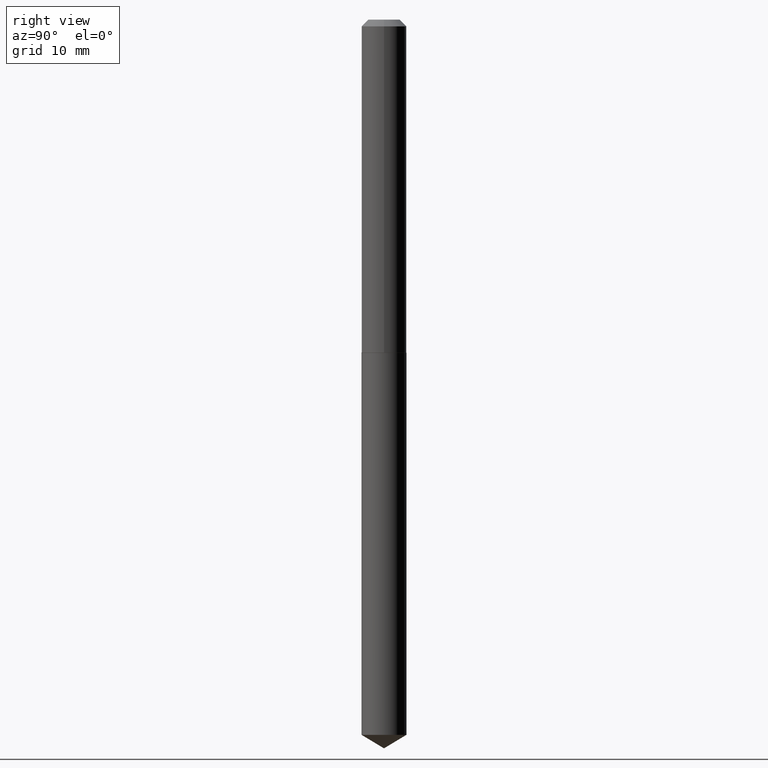
[diagram: clean part render]
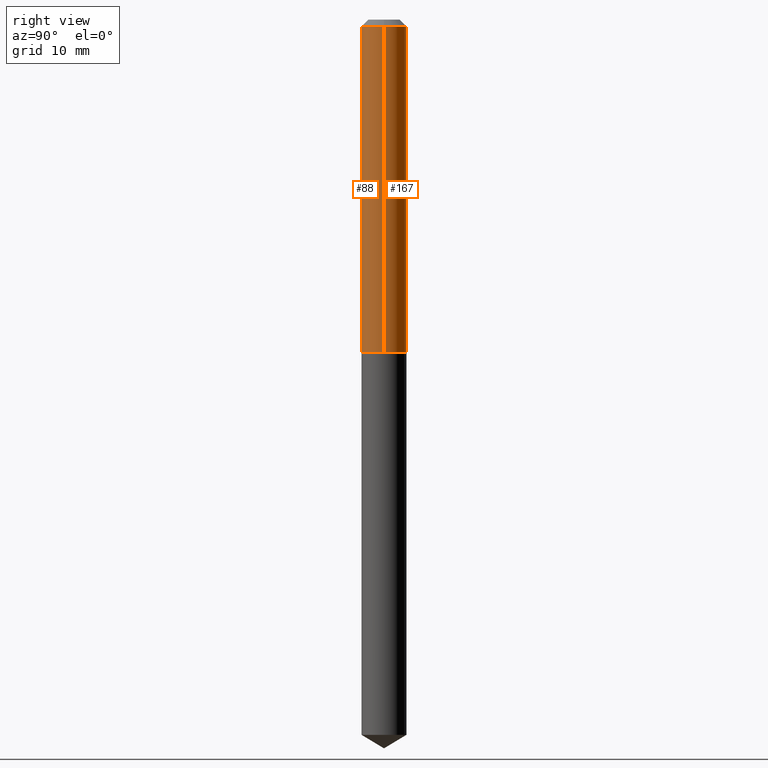
[diagram: same view with one multi-face feature highlighted, each face labeled with its STEP entity id]
A machine part, right view. The highlighted faces form ONE feature: a constant-radius fillet chain: 2 tangent blend faces with common blend radius 2.6505 mm. The faces share edges in the B-rep.
Their STEP definitions:
[1] entity #88 (Cylinder):
#1 = EDGE_CURVE ( 'NONE', #156, #247, #317, .T. ) ;
#11 = ORIENTED_EDGE ( 'NONE', *, *, #1, .T. ) ;
#30 = DIRECTION ( 'NONE',  ( -2.445468806185136597E-29, 3.491481338843145583E-15, 1.000000000000000000 ) ) ;
#31 = EDGE_CURVE ( 'NONE', #287, #104, #282, .T. ) ;
#40 = ORIENTED_EDGE ( 'NONE', *, *, #362, .T. ) ;
#53 = ORIENTED_EDGE ( 'NONE', *, *, #31, .F. ) ;
#56 = AXIS2_PLACEMENT_3D ( 'NONE', #64, #30, #379 ) ;
#64 = CARTESIAN_POINT ( 'NONE',  ( 0.000000000000000000, 0.000000000000000000, 0.000000000000000000 ) ) ;
#65 = CARTESIAN_POINT ( 'NONE',  ( 7.642090019328602662E-31, -1.091087918388490267E-16, -0.03125000000000020817 ) ) ;
#85 = CARTESIAN_POINT ( 'NONE',  ( 3.782651149407169365E-29, -5.400623334922577222E-15, -1.546799999999999953 ) ) ;
#88 = ADVANCED_FACE ( 'NONE', ( #148 ), #212, .T. ) ;
#94 = DIRECTION ( 'NONE',  ( -2.445468806185136597E-29, 3.491481338843145583E-15, 1.000000000000000000 ) ) ;
#104 = VERTEX_POINT ( 'NONE', #269 ) ;
#110 = LINE ( 'NONE', #373, #270 ) ;
#134 = ORIENTED_EDGE ( 'NONE', *, *, #306, .F. ) ;
#135 = CARTESIAN_POINT ( 'NONE',  ( 0.1043500000000001787, -6.129295490339141210E-15, -1.546799999999999953 ) ) ;
#148 = FACE_OUTER_BOUND ( 'NONE', #227, .T. ) ;
#156 = VERTEX_POINT ( 'NONE', #281 ) ;
#168 = VECTOR ( 'NONE', #322, 39.37007874015748143 ) ;
#206 = DIRECTION ( 'NONE',  ( 1.000000000000000000, -6.982962677686266711E-15, 0.000000000000000000 ) ) ;
#209 = DIRECTION ( 'NONE',  ( -2.445468806185136597E-29, 3.491481338843145583E-15, 1.000000000000000000 ) ) ;
#212 = CYLINDRICAL_SURFACE ( 'NONE', #56, 0.1043500000000000816 ) ;
#227 = EDGE_LOOP ( 'NONE', ( #134, #11, #40, #53 ) ) ;
#237 = LINE ( 'NONE', #291, #168 ) ;
#247 = VERTEX_POINT ( 'NONE', #135 ) ;
#249 = AXIS2_PLACEMENT_3D ( 'NONE', #65, #209, #206 ) ;
#267 = CARTESIAN_POINT ( 'NONE',  ( -0.1043499999999999844, -2.013414718615047446E-15, -0.03125000000000020817 ) ) ;
#269 = CARTESIAN_POINT ( 'NONE',  ( 0.1043499999999999844, -8.377809472554109199E-16, -0.03125000000000020817 ) ) ;
#270 = VECTOR ( 'NONE', #355, 39.37007874015748143 ) ;
#275 = DIRECTION ( 'NONE',  ( 1.000000000000000000, -6.982962677686269077E-15, 0.000000000000000000 ) ) ;
#281 = CARTESIAN_POINT ( 'NONE',  ( -0.1043500000000001787, -4.659171990156911506E-15, -1.546799999999999953 ) ) ;
#282 = CIRCLE ( 'NONE', #249, 0.1043499999999999844 ) ;
#287 = VERTEX_POINT ( 'NONE', #267 ) ;
#291 = CARTESIAN_POINT ( 'NONE',  ( 0.1043500000000000816, -7.286721554165625095E-16, 5.088290465543062912E-30 ) ) ;
#306 = EDGE_CURVE ( 'NONE', #156, #287, #110, .T. ) ;
#317 = CIRCLE ( 'NONE', #375, 0.1043500000000001787 ) ;
#322 = DIRECTION ( 'NONE',  ( -2.445468806185136877E-29, 3.491481338843145188E-15, 1.000000000000000000 ) ) ;
#355 = DIRECTION ( 'NONE',  ( -2.445468806185136877E-29, 3.491481338843145188E-15, 1.000000000000000000 ) ) ;
#362 = EDGE_CURVE ( 'NONE', #247, #104, #237, .T. ) ;
#373 = CARTESIAN_POINT ( 'NONE',  ( -0.1043500000000000816, 7.414513447656651236E-16, -5.132908766680998310E-30 ) ) ;
#375 = AXIS2_PLACEMENT_3D ( 'NONE', #85, #94, #275 ) ;
#379 = DIRECTION ( 'NONE',  ( 1.000000000000000000, -6.982962677686266711E-15, 4.876176775795935793E-29 ) ) ;
[2] entity #167 (Cylinder):
#3 = FACE_OUTER_BOUND ( 'NONE', #51, .T. ) ;
#5 = DIRECTION ( 'NONE',  ( -2.445468806185136597E-29, 3.491481338843145583E-15, 1.000000000000000000 ) ) ;
#9 = AXIS2_PLACEMENT_3D ( 'NONE', #133, #69, #192 ) ;
#10 = DIRECTION ( 'NONE',  ( 1.000000000000000000, -6.982962677686269077E-15, 0.000000000000000000 ) ) ;
#51 = EDGE_LOOP ( 'NONE', ( #348, #364, #259, #225 ) ) ;
#69 = DIRECTION ( 'NONE',  ( -2.445468806185136597E-29, 3.491481338843145583E-15, 1.000000000000000000 ) ) ;
#97 = CYLINDRICAL_SURFACE ( 'NONE', #157, 0.1043500000000000816 ) ;
#100 = DIRECTION ( 'NONE',  ( -2.445468806185136597E-29, 3.491481338843145583E-15, 1.000000000000000000 ) ) ;
#104 = VERTEX_POINT ( 'NONE', #269 ) ;
#110 = LINE ( 'NONE', #373, #270 ) ;
#130 = CARTESIAN_POINT ( 'NONE',  ( 0.000000000000000000, 0.000000000000000000, 0.000000000000000000 ) ) ;
#133 = CARTESIAN_POINT ( 'NONE',  ( 7.642090019328602662E-31, -1.091087918388490267E-16, -0.03125000000000020817 ) ) ;
#135 = CARTESIAN_POINT ( 'NONE',  ( 0.1043500000000001787, -6.129295490339141210E-15, -1.546799999999999953 ) ) ;
#139 = EDGE_CURVE ( 'NONE', #104, #287, #271, .T. ) ;
#156 = VERTEX_POINT ( 'NONE', #281 ) ;
#157 = AXIS2_PLACEMENT_3D ( 'NONE', #130, #100, #367 ) ;
#164 = CARTESIAN_POINT ( 'NONE',  ( 3.782651149407169365E-29, -5.400623334922577222E-15, -1.546799999999999953 ) ) ;
#167 = ADVANCED_FACE ( 'NONE', ( #3 ), #97, .T. ) ;
#168 = VECTOR ( 'NONE', #322, 39.37007874015748143 ) ;
#186 = EDGE_CURVE ( 'NONE', #247, #156, #365, .T. ) ;
#192 = DIRECTION ( 'NONE',  ( 1.000000000000000000, -6.982962677686266711E-15, 0.000000000000000000 ) ) ;
#207 = AXIS2_PLACEMENT_3D ( 'NONE', #164, #5, #10 ) ;
#225 = ORIENTED_EDGE ( 'NONE', *, *, #362, .F. ) ;
#237 = LINE ( 'NONE', #291, #168 ) ;
#247 = VERTEX_POINT ( 'NONE', #135 ) ;
#259 = ORIENTED_EDGE ( 'NONE', *, *, #139, .F. ) ;
#267 = CARTESIAN_POINT ( 'NONE',  ( -0.1043499999999999844, -2.013414718615047446E-15, -0.03125000000000020817 ) ) ;
#269 = CARTESIAN_POINT ( 'NONE',  ( 0.1043499999999999844, -8.377809472554109199E-16, -0.03125000000000020817 ) ) ;
#270 = VECTOR ( 'NONE', #355, 39.37007874015748143 ) ;
#271 = CIRCLE ( 'NONE', #9, 0.1043499999999999844 ) ;
#281 = CARTESIAN_POINT ( 'NONE',  ( -0.1043500000000001787, -4.659171990156911506E-15, -1.546799999999999953 ) ) ;
#287 = VERTEX_POINT ( 'NONE', #267 ) ;
#291 = CARTESIAN_POINT ( 'NONE',  ( 0.1043500000000000816, -7.286721554165625095E-16, 5.088290465543062912E-30 ) ) ;
#306 = EDGE_CURVE ( 'NONE', #156, #287, #110, .T. ) ;
#322 = DIRECTION ( 'NONE',  ( -2.445468806185136877E-29, 3.491481338843145188E-15, 1.000000000000000000 ) ) ;
#348 = ORIENTED_EDGE ( 'NONE', *, *, #186, .T. ) ;
#355 = DIRECTION ( 'NONE',  ( -2.445468806185136877E-29, 3.491481338843145188E-15, 1.000000000000000000 ) ) ;
#362 = EDGE_CURVE ( 'NONE', #247, #104, #237, .T. ) ;
#364 = ORIENTED_EDGE ( 'NONE', *, *, #306, .T. ) ;
#365 = CIRCLE ( 'NONE', #207, 0.1043500000000001787 ) ;
#367 = DIRECTION ( 'NONE',  ( 1.000000000000000000, -6.982962677686266711E-15, 4.876176775795935793E-29 ) ) ;
#373 = CARTESIAN_POINT ( 'NONE',  ( -0.1043500000000000816, 7.414513447656651236E-16, -5.132908766680998310E-30 ) ) ;